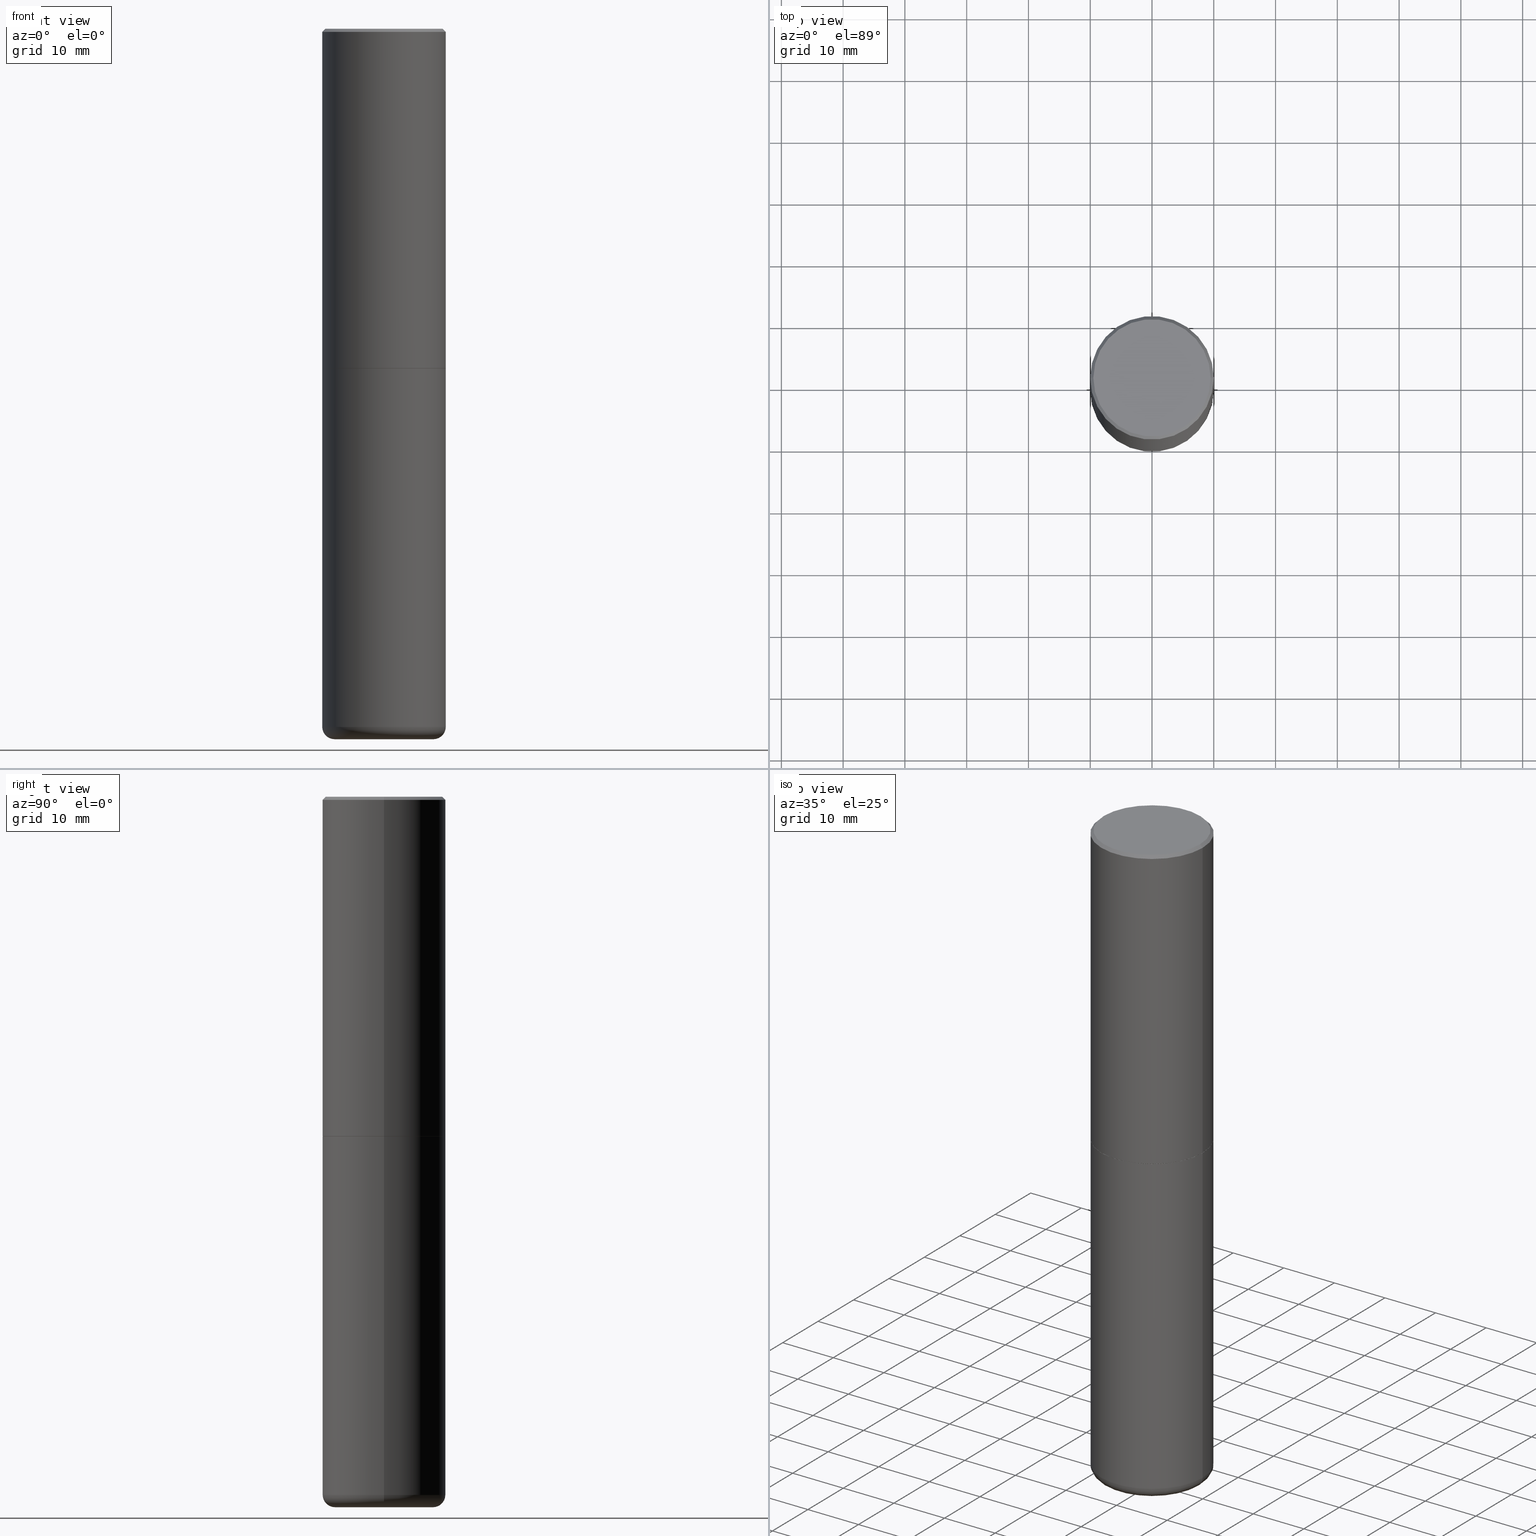
[diagram: canonical four-view strip — front | top / right | iso, engineering-drawing reading convention]
A machine part, canonical four-view strip (front | top / right | iso — engineering-drawing reading convention). The complete STEP part file that produces these views, byte-faithful:
ISO-10303-21;
HEADER;
FILE_DESCRIPTION (( 'STEP AP203' ),
    '1' );
FILE_NAME ('74533.STEP',
    '2024-03-06T15:25:09',
    ( '' ),
    ( '' ),
    'SwSTEP 2.0',
    'SolidWorks 2023',
    '' );
FILE_SCHEMA (( 'CONFIG_CONTROL_DESIGN' ));
ENDSEC;

DATA;
#1 = CC_DESIGN_PERSON_AND_ORGANIZATION_ASSIGNMENT ( #115, #75, ( #155 ) ) ;
#2 = ORIENTED_EDGE ( 'NONE', *, *, #122, .F. ) ;
#3 = VECTOR ( 'NONE', #293, 39.37007874015748143 ) ;
#4 = LOCAL_TIME ( 10, 25, 9.000000000000000000, #246 ) ;
#5 = APPROVAL ( #372, 'UNSPECIFIED' ) ;
#6 = ORIENTED_EDGE ( 'NONE', *, *, #55, .T. ) ;
#7 = CARTESIAN_POINT ( 'NONE',  ( 0.000000000000000000, 0.000000000000000000, 0.000000000000000000 ) ) ;
#8 = ORIENTED_EDGE ( 'NONE', *, *, #74, .F. ) ;
#9 = VECTOR ( 'NONE', #393, 39.37007874015748143 ) ;
#10 = DATE_AND_TIME ( #242, #119 ) ;
#11 = ORGANIZATION ( 'UNSPECIFIED', 'UNSPECIFIED', '' ) ;
#12 = CARTESIAN_POINT ( 'NONE',  ( -0.3737000000000003097, 2.644447966039789847E-15, -2.219626494852397645E-16 ) ) ;
#13 = ORIENTED_EDGE ( 'NONE', *, *, #269, .F. ) ;
#14 = ADVANCED_FACE ( 'NONE', ( #411 ), #213, .T. ) ;
#15 = APPROVAL_STATUS ( 'not_yet_approved' ) ;
#16 = DIRECTION ( 'NONE',  ( -2.445468806185136597E-29, 3.491481338843145583E-15, 1.000000000000000000 ) ) ;
#17 = EDGE_LOOP ( 'NONE', ( #114, #398, #216, #108 ) ) ;
#18 = CARTESIAN_POINT ( 'NONE',  ( 5.295418152913293224E-29, -7.560453691130945845E-15, -2.165399999999999547 ) ) ;
#19 = ORIENTED_EDGE ( 'NONE', *, *, #100, .T. ) ;
#20 = CIRCLE ( 'NONE', #93, 0.3937000000000000499 ) ;
#21 = CIRCLE ( 'NONE', #304, 0.3737000000000003097 ) ;
#22 = CARTESIAN_POINT ( 'NONE',  ( 0.000000000000000000, 0.000000000000000000, 0.000000000000000000 ) ) ;
#23 = EDGE_LOOP ( 'NONE', ( #371, #283, #42, #8 ) ) ;
#24 = DIRECTION ( 'NONE',  ( 1.000000000000000000, -6.982962677686261977E-15, 0.000000000000000000 ) ) ;
#25 = MANIFOLD_SOLID_BREP ( 'Body-Move/Copy2[2]', #202 ) ;
#26 = DIRECTION ( 'NONE',  ( 1.000000000000000000, -6.982962677686273810E-15, 0.000000000000000000 ) ) ;
#27 = EDGE_CURVE ( 'NONE', #280, #110, #171, .T. ) ;
#28 = DIRECTION ( 'NONE',  ( 1.000000000000000000, -6.982962677686265922E-15, 0.000000000000000000 ) ) ;
#29 = FACE_OUTER_BOUND ( 'NONE', #237, .T. ) ;
#30 = CARTESIAN_POINT ( 'NONE',  ( -0.3937000000000000499, 2.679362779428219918E-15, -0.02000000000000008715 ) ) ;
#31 = AXIS2_PLACEMENT_3D ( 'NONE', #382, #277, #346 ) ;
#32 = APPROVAL_PERSON_ORGANIZATION ( #409, #79, #184 ) ;
#33 = ORIENTED_EDGE ( 'NONE', *, *, #160, .F. ) ;
#34 = CARTESIAN_POINT ( 'NONE',  ( 0.3937000000000000499, -1.030964609733602906E-14, -2.165399999999999547 ) ) ;
#35 = ORIENTED_EDGE ( 'NONE', *, *, #362, .T. ) ;
#36 = CARTESIAN_POINT ( 'NONE',  ( 4.890937612370294178E-31, -6.982962677686321191E-17, -0.02000000000000008715 ) ) ;
#37 = AXIS2_PLACEMENT_3D ( 'NONE', #349, #89, #99 ) ;
#38 = ORIENTED_EDGE ( 'NONE', *, *, #97, .F. ) ;
#39 = EDGE_CURVE ( 'NONE', #287, #69, #229, .T. ) ;
#40 = ORIENTED_EDGE ( 'NONE', *, *, #381, .T. ) ;
#41 = DATE_AND_TIME ( #284, #394 ) ;
#42 = ORIENTED_EDGE ( 'NONE', *, *, #262, .F. ) ;
#43 = AXIS2_PLACEMENT_3D ( 'NONE', #191, #263, #59 ) ;
#44 = CONICAL_SURFACE ( 'NONE', #325, 0.3926999999999999935, 0.7853981633975507526 ) ;
#45 = SHAPE_DEFINITION_REPRESENTATION ( #195, #205 ) ;
#46 = DIRECTION ( 'NONE',  ( -2.445468806185136597E-29, 3.491481338843145583E-15, 1.000000000000000000 ) ) ;
#47 = CARTESIAN_POINT ( 'NONE',  ( 0.3150000000000000577, -1.773288457185044394E-14, -4.448900000000000077 ) ) ;
#48 = PERSON_AND_ORGANIZATION ( #286, #11 ) ;
#49 = CARTESIAN_POINT ( 'NONE',  ( 1.087964617183705369E-28, -1.553325132837927055E-14, -4.448900000000000077 ) ) ;
#50 = CARTESIAN_POINT ( 'NONE',  ( 1.087964617183705369E-28, -1.553325132837927055E-14, -4.448900000000000077 ) ) ;
#51 = DIRECTION ( 'NONE',  ( 1.000000000000000000, -6.982962677686266711E-15, 4.877734241229871763E-29 ) ) ;
#52 = CC_DESIGN_PERSON_AND_ORGANIZATION_ASSIGNMENT ( #303, #309, ( #183 ) ) ;
#53 = EDGE_LOOP ( 'NONE', ( #13, #302, #19, #330 ) ) ;
#54 = APPROVAL_STATUS ( 'not_yet_approved' ) ;
#55 = EDGE_CURVE ( 'NONE', #366, #240, #373, .T. ) ;
#56 = CONICAL_SURFACE ( 'NONE', #103, 0.3926999999999999935, 0.7853981633975507526 ) ;
#57 = CARTESIAN_POINT ( 'NONE',  ( 5.295418152913293224E-29, -7.560453691130945845E-15, -2.165399999999999547 ) ) ;
#58 = DIRECTION ( 'NONE',  ( -2.445468806185136597E-29, 3.491481338843145583E-15, 1.000000000000000000 ) ) ;
#59 = DIRECTION ( 'NONE',  ( 1.000000000000000000, -6.982962677686268288E-15, 4.883557194083113462E-29 ) ) ;
#60 = DIRECTION ( 'NONE',  ( -2.445468806185136597E-29, 3.491481338843145583E-15, 1.000000000000000000 ) ) ;
#61 = ADVANCED_FACE ( 'NONE', ( #275 ), #111, .T. ) ;
#62 = CARTESIAN_POINT ( 'NONE',  ( 5.295418152913293224E-29, -7.560453691130945845E-15, -2.165399999999999547 ) ) ;
#63 = TOROIDAL_SURFACE ( 'NONE', #43, 0.3150000000000000577, 0.07870000000000024198 ) ;
#64 = AXIS2_PLACEMENT_3D ( 'NONE', #152, #177, #400 ) ;
#65 = DIRECTION ( 'NONE',  ( -2.445468806185136597E-29, 3.491481338843145583E-15, 1.000000000000000000 ) ) ;
#66 = ADVANCED_FACE ( 'NONE', ( #319 ), #91, .T. ) ;
#67 = AXIS2_PLACEMENT_3D ( 'NONE', #18, #113, #407 ) ;
#68 = DIRECTION ( 'NONE',  ( 0.7071067811866199593, -2.468850131083015945E-15, 0.7071067811864750752 ) ) ;
#69 = VERTEX_POINT ( 'NONE', #323 ) ;
#70 = EDGE_CURVE ( 'NONE', #341, #270, #355, .T. ) ;
#71 = ORIENTED_EDGE ( 'NONE', *, *, #168, .F. ) ;
#72 = VECTOR ( 'NONE', #289, 39.37007874015748143 ) ;
#73 = ORIENTED_EDGE ( 'NONE', *, *, #331, .T. ) ;
#74 = EDGE_CURVE ( 'NONE', #110, #240, #414, .T. ) ;
#75 = PERSON_AND_ORGANIZATION_ROLE ( 'design_owner' ) ;
#76 = ORIENTED_EDGE ( 'NONE', *, *, #39, .F. ) ;
#77 = CALENDAR_DATE ( 2024, 6, 3 ) ;
#78 = CARTESIAN_POINT ( 'NONE',  ( 4.890937612370294178E-31, -6.982962677686321191E-17, -0.02000000000000008715 ) ) ;
#79 = APPROVAL ( #54, 'UNSPECIFIED' ) ;
#80 = ORIENTED_EDGE ( 'NONE', *, *, #269, .T. ) ;
#81 = CIRCLE ( 'NONE', #324, 0.3937000000000000499 ) ;
#82 = COORDINATED_UNIVERSAL_TIME_OFFSET ( 5, 0, .BEHIND. ) ;
#83 = DIRECTION ( 'NONE',  ( -1.000000000000000000, 6.982962677686265922E-15, -4.876176775795935793E-29 ) ) ;
#84 = VERTEX_POINT ( 'NONE', #30 ) ;
#85 = DIRECTION ( 'NONE',  ( -1.000000000000000000, 6.982962677686265922E-15, 0.000000000000000000 ) ) ;
#86 = UNCERTAINTY_MEASURE_WITH_UNIT (LENGTH_MEASURE( 1.000000000000000082E-05 ), #389, 'distance_accuracy_value', 'NONE');
#87 = ORIENTED_EDGE ( 'NONE', *, *, #321, .F. ) ;
#88 = APPROVAL_DATE_TIME ( #176, #221 ) ;
#89 = DIRECTION ( 'NONE',  ( -2.445468806185136597E-29, 3.491481338843145583E-15, 1.000000000000000000 ) ) ;
#90 = FACE_OUTER_BOUND ( 'NONE', #235, .T. ) ;
#91 = CYLINDRICAL_SURFACE ( 'NONE', #37, 0.3937000000000001054 ) ;
#92 = CARTESIAN_POINT ( 'NONE',  ( 0.3937000000000001054, -2.749192406205084005E-15, 1.919750796630860452E-29 ) ) ;
#93 = AXIS2_PLACEMENT_3D ( 'NONE', #225, #227, #28 ) ;
#94 = LOCAL_TIME ( 10, 25, 9.000000000000000000, #369 ) ;
#95 = PLANE ( 'NONE',  #64 ) ;
#96 = CARTESIAN_POINT ( 'NONE',  ( 4.890937612370294178E-31, -6.982962677686321191E-17, -0.02000000000000008715 ) ) ;
#97 = EDGE_CURVE ( 'NONE', #341, #280, #149, .T. ) ;
#98 = PLANE ( 'NONE',  #239 ) ;
#99 = DIRECTION ( 'NONE',  ( 1.000000000000000000, -6.982962677686266711E-15, 4.876176775795935793E-29 ) ) ;
#100 = EDGE_CURVE ( 'NONE', #368, #84, #20, .T. ) ;
#101 = DIRECTION ( 'NONE',  ( -2.445468806185136597E-29, 3.491481338843145583E-15, 1.000000000000000000 ) ) ;
#102 = DIRECTION ( 'NONE',  ( -2.445468806185136597E-29, 3.491481338843145583E-15, 1.000000000000000000 ) ) ;
#103 = AXIS2_PLACEMENT_3D ( 'NONE', #193, #327, #162 ) ;
#104 = PLANE ( 'NONE',  #109 ) ;
#105 = EDGE_LOOP ( 'NONE', ( #172, #332, #200, #344 ) ) ;
#106 = EDGE_CURVE ( 'NONE', #241, #368, #231, .T. ) ;
#107 = EDGE_LOOP ( 'NONE', ( #333, #6 ) ) ;
#108 = ORIENTED_EDGE ( 'NONE', *, *, #27, .F. ) ;
#109 = AXIS2_PLACEMENT_3D ( 'NONE', #397, #367, #335 ) ;
#110 = VERTEX_POINT ( 'NONE', #265 ) ;
#111 = CYLINDRICAL_SURFACE ( 'NONE', #267, 0.3937000000000001054 ) ;
#112 = DATE_TIME_ROLE ( 'creation_date' ) ;
#113 = DIRECTION ( 'NONE',  ( -2.445468806185136597E-29, 3.491481338843145583E-15, 1.000000000000000000 ) ) ;
#114 = ORIENTED_EDGE ( 'NONE', *, *, #160, .T. ) ;
#115 = PERSON_AND_ORGANIZATION ( #286, #11 ) ;
#116 = CYLINDRICAL_SURFACE ( 'NONE', #360, 0.3937000000000001609 ) ;
#117 = EDGE_LOOP ( 'NONE', ( #33, #38 ) ) ;
#118 = AXIS2_PLACEMENT_3D ( 'NONE', #207, #218, #153 ) ;
#119 = LOCAL_TIME ( 10, 25, 9.000000000000000000, #82 ) ;
#120 = APPROVAL_DATE_TIME ( #41, #5 ) ;
#121 = DIRECTION ( 'NONE',  ( 2.445468806185136597E-29, -3.491481338843145583E-15, -1.000000000000000000 ) ) ;
#122 = EDGE_CURVE ( 'NONE', #270, #110, #314, .T. ) ;
#123 = DIRECTION ( 'NONE',  ( 1.000000000000000000, -6.982962677686273810E-15, 0.000000000000000000 ) ) ;
#124 = DIRECTION ( 'NONE',  ( 2.438088387897960049E-29, -3.491481338843145188E-15, -1.000000000000000000 ) ) ;
#125 = CARTESIAN_POINT ( 'NONE',  ( 5.295418152913293224E-29, -7.560453691130945845E-15, -2.165399999999999547 ) ) ;
#126 = PERSON_AND_ORGANIZATION ( #286, #11 ) ;
#127 = CYLINDRICAL_SURFACE ( 'NONE', #31, 0.3937000000000001609 ) ;
#128 = CARTESIAN_POINT ( 'NONE',  ( 1.107210456688382522E-28, -1.580803090974622705E-14, -4.527600000000000513 ) ) ;
#129 = VECTOR ( 'NONE', #255, 39.37007874015748143 ) ;
#130 = LENGTH_MEASURE_WITH_UNIT ( LENGTH_MEASURE( 0.02539999999999999897 ), #359 );
#131 = CC_DESIGN_PERSON_AND_ORGANIZATION_ASSIGNMENT ( #142, #317, ( #224 ) ) ;
#132 = CARTESIAN_POINT ( 'NONE',  ( 0.3937000000000000499, -2.770807688499515734E-15, -0.02000000000000008715 ) ) ;
#133 = ADVANCED_FACE ( 'NONE', ( #260 ), #63, .T. ) ;
#134 = CARTESIAN_POINT ( 'NONE',  ( -0.3150000000000000577, -1.329504171073495377E-14, -4.448900000000000077 ) ) ;
#135 = EDGE_CURVE ( 'NONE', #270, #366, #386, .T. ) ;
#136 = AXIS2_PLACEMENT_3D ( 'NONE', #49, #46, #24 ) ;
#137 = DIRECTION ( 'NONE',  ( -1.000000000000000000, 6.982962677686265922E-15, 0.000000000000000000 ) ) ;
#138 = DIRECTION ( 'NONE',  ( 0.000000000000000000, 0.000000000000000000, 1.000000000000000000 ) ) ;
#139 = CARTESIAN_POINT ( 'NONE',  ( 0.3737000000000003097, -2.667287895133369937E-15, -2.219626494852029345E-16 ) ) ;
#140 = AXIS2_PLACEMENT_3D ( 'NONE', #125, #256, #383 ) ;
#141 = ORIENTED_EDGE ( 'NONE', *, *, #175, .T. ) ;
#142 = PERSON_AND_ORGANIZATION ( #286, #11 ) ;
#143 = CARTESIAN_POINT ( 'NONE',  ( -0.3150000000000000577, -1.315283293489683104E-14, -4.527600000000000513 ) ) ;
#144 = EDGE_LOOP ( 'NONE', ( #245, #408, #166, #214 ) ) ;
#145 = COORDINATED_UNIVERSAL_TIME_OFFSET ( 5, 0, .BEHIND. ) ;
#146 = FACE_OUTER_BOUND ( 'NONE', #107, .T. ) ;
#147 = ORIENTED_EDGE ( 'NONE', *, *, #321, .T. ) ;
#148 = CARTESIAN_POINT ( 'NONE',  ( -0.3937000000000002164, -1.273584457769175656E-14, -4.448900000000000077 ) ) ;
#149 = CIRCLE ( 'NONE', #391, 0.3150000000000000577 ) ;
#150 = VECTOR ( 'NONE', #211, 39.37007874015748143 ) ;
#151 = PERSON_AND_ORGANIZATION_ROLE ( 'creator' ) ;
#152 = CARTESIAN_POINT ( 'NONE',  ( 2.609533152651359776E-15, 0.3737000000000003097, -1.415747901068295320E-15 ) ) ;
#153 = DIRECTION ( 'NONE',  ( 1.000000000000000000, -6.982962677686268288E-15, 0.000000000000000000 ) ) ;
#154 = LINE ( 'NONE', #318, #150 ) ;
#155 = PRODUCT ( '74533', '74533', '', ( #405 ) ) ;
#156 = CARTESIAN_POINT ( 'NONE',  ( 5.292972684107107621E-29, -7.556962209792102838E-15, -2.164399999999999658 ) ) ;
#157 =( NAMED_UNIT ( * ) PLANE_ANGLE_UNIT ( ) SI_UNIT ( $, .RADIAN. ) );
#158 = CC_DESIGN_DATE_AND_TIME_ASSIGNMENT ( #219, #112, ( #271 ) ) ;
#159 = DIRECTION ( 'NONE',  ( -2.445468806185136597E-29, 3.491481338843145583E-15, 1.000000000000000000 ) ) ;
#160 = EDGE_CURVE ( 'NONE', #280, #341, #233, .T. ) ;
#161 = MANIFOLD_SOLID_BREP ( 'Body-Move/Copy2[1]', #406 ) ;
#162 = DIRECTION ( 'NONE',  ( 1.000000000000000000, -6.982962677686268288E-15, 0.000000000000000000 ) ) ;
#163 = AXIS2_PLACEMENT_3D ( 'NONE', #199, #60, #288 ) ;
#164 = AXIS2_PLACEMENT_3D ( 'NONE', #217, #124, #83 ) ;
#165 = EDGE_CURVE ( 'NONE', #380, #181, #328, .T. ) ;
#166 = ORIENTED_EDGE ( 'NONE', *, *, #257, .T. ) ;
#167 = ORIENTED_EDGE ( 'NONE', *, *, #100, .F. ) ;
#168 = EDGE_CURVE ( 'NONE', #84, #368, #81, .T. ) ;
#169 = EDGE_LOOP ( 'NONE', ( #204, #80 ) ) ;
#170 = PERSON_AND_ORGANIZATION ( #286, #11 ) ;
#171 = CIRCLE ( 'NONE', #364, 0.07870000000000024198 ) ;
#172 = ORIENTED_EDGE ( 'NONE', *, *, #135, .F. ) ;
#173 = DIRECTION ( 'NONE',  ( 1.000000000000000000, -6.982962677686266711E-15, 4.876176775795935793E-29 ) ) ;
#174 = ORIENTED_EDGE ( 'NONE', *, *, #70, .F. ) ;
#175 = EDGE_CURVE ( 'NONE', #287, #380, #292, .T. ) ;
#176 = DATE_AND_TIME ( #306, #4 ) ;
#177 = DIRECTION ( 'NONE',  ( 2.438088387897960049E-29, -3.491481338843145188E-15, -1.000000000000000000 ) ) ;
#178 = DIRECTION ( 'NONE',  ( -2.445468806185136597E-29, 3.491481338843145583E-15, 1.000000000000000000 ) ) ;
#179 = CARTESIAN_POINT ( 'NONE',  ( 0.3150000000000000577, -1.800766415321740359E-14, -4.527600000000000513 ) ) ;
#180 = DESIGN_CONTEXT ( 'detailed design', #354, 'design' ) ;
#181 = VERTEX_POINT ( 'NONE', #387 ) ;
#182 = AXIS2_PLACEMENT_3D ( 'NONE', #261, #322, #228 ) ;
#183 = SECURITY_CLASSIFICATION ( '', '', #378 ) ;
#184 = APPROVAL_ROLE ( '' ) ;
#185 = DIRECTION ( 'NONE',  ( -2.445468806185136597E-29, 3.491481338843145583E-15, 1.000000000000000000 ) ) ;
#186 = CARTESIAN_POINT ( 'NONE',  ( 0.000000000000000000, 0.000000000000000000, 0.000000000000000000 ) ) ;
#187 = DIRECTION ( 'NONE',  ( 1.000000000000000000, -6.982962677686273810E-15, 0.000000000000000000 ) ) ;
#188 = CARTESIAN_POINT ( 'NONE',  ( -0.3926999999999999935, -4.764853913452808876E-15, -2.165399999999999547 ) ) ;
#189 = DIMENSIONAL_EXPONENTS ( 1.000000000000000000, 0.000000000000000000, 0.000000000000000000, 0.000000000000000000, 0.000000000000000000, 0.000000000000000000, 0.000000000000000000 ) ;
#190 = AXIS2_PLACEMENT_3D ( 'NONE', #412, #185, #51 ) ;
#191 = CARTESIAN_POINT ( 'NONE',  ( 1.087964617183705369E-28, -1.553325132837927055E-14, -4.448900000000000077 ) ) ;
#192 = DIRECTION ( 'NONE',  ( -0.7071067811866199593, 7.493145998870616062E-15, 0.7071067811864750752 ) ) ;
#193 = CARTESIAN_POINT ( 'NONE',  ( 5.295418152913293224E-29, -7.560453691130945845E-15, -2.165399999999999547 ) ) ;
#194 = ADVANCED_FACE ( 'NONE', ( #353 ), #98, .F. ) ;
#195 = PRODUCT_DEFINITION_SHAPE ( 'NONE', 'NONE',  #271 ) ;
#196 = AXIS2_PLACEMENT_3D ( 'NONE', #36, #301, #137 ) ;
#197 = AXIS2_PLACEMENT_3D ( 'NONE', #7, #138, #272 ) ;
#198 = ORIENTED_EDGE ( 'NONE', *, *, #381, .F. ) ;
#199 = CARTESIAN_POINT ( 'NONE',  ( 5.295418152913293224E-29, -7.560453691130945845E-15, -2.165399999999999547 ) ) ;
#200 = ORIENTED_EDGE ( 'NONE', *, *, #74, .T. ) ;
#201 = CC_DESIGN_PERSON_AND_ORGANIZATION_ASSIGNMENT ( #126, #151, ( #224 ) ) ;
#202 = CLOSED_SHELL ( 'NONE', ( #206, #291, #212, #390, #298, #312, #194, #342 ) ) ;
#203 = APPROVAL_PERSON_ORGANIZATION ( #170, #5, #345 ) ;
#204 = ORIENTED_EDGE ( 'NONE', *, *, #376, .T. ) ;
#205 = ADVANCED_BREP_SHAPE_REPRESENTATION ( '74533', ( #161, #25, #197 ), #299 ) ;
#206 = ADVANCED_FACE ( 'NONE', ( #29 ), #56, .T. ) ;
#207 = CARTESIAN_POINT ( 'NONE',  ( 5.295418152913293224E-29, -7.560453691130945845E-15, -2.165399999999999547 ) ) ;
#208 = PERSON_AND_ORGANIZATION_ROLE ( 'creator' ) ;
#209 = ORIENTED_EDGE ( 'NONE', *, *, #362, .F. ) ;
#210 = APPROVAL_DATE_TIME ( #276, #79 ) ;
#211 = DIRECTION ( 'NONE',  ( -2.445468806185136877E-29, 3.491481338843145188E-15, 1.000000000000000000 ) ) ;
#212 = ADVANCED_FACE ( 'NONE', ( #295 ), #294, .T. ) ;
#213 = TOROIDAL_SURFACE ( 'NONE', #290, 0.3150000000000000577, 0.07870000000000024198 ) ;
#214 = ORIENTED_EDGE ( 'NONE', *, *, #165, .F. ) ;
#215 = DATE_TIME_ROLE ( 'classification_date' ) ;
#216 = ORIENTED_EDGE ( 'NONE', *, *, #264, .F. ) ;
#217 = CARTESIAN_POINT ( 'NONE',  ( 5.295418152913293224E-29, -7.560453691130945845E-15, -2.165399999999999547 ) ) ;
#218 = DIRECTION ( 'NONE',  ( -2.445468806185136597E-29, 3.491481338843145583E-15, 1.000000000000000000 ) ) ;
#219 = DATE_AND_TIME ( #77, #94 ) ;
#220 = FACE_OUTER_BOUND ( 'NONE', #305, .T. ) ;
#221 = APPROVAL ( #15, 'UNSPECIFIED' ) ;
#222 = DIRECTION ( 'NONE',  ( 1.000000000000000000, -6.982962677686266711E-15, 4.876176775795935793E-29 ) ) ;
#223 = VECTOR ( 'NONE', #279, 39.37007874015748143 ) ;
#224 = PRODUCT_DEFINITION_FORMATION_WITH_SPECIFIED_SOURCE ( 'ANY', '', #155, .NOT_KNOWN. ) ;
#225 = CARTESIAN_POINT ( 'NONE',  ( 4.890937612370294178E-31, -6.982962677686321191E-17, -0.02000000000000008715 ) ) ;
#226 = CARTESIAN_POINT ( 'NONE',  ( -0.3937000000000000499, -8.749445759067592624E-15, -2.165399999999999547 ) ) ;
#227 = DIRECTION ( 'NONE',  ( -2.445468806185136597E-29, 3.491481338843145583E-15, 1.000000000000000000 ) ) ;
#228 = DIRECTION ( 'NONE',  ( 1.000000000000000000, -6.982962677686261977E-15, 0.000000000000000000 ) ) ;
#229 = CIRCLE ( 'NONE', #118, 0.3926999999999999935 ) ;
#230 = CARTESIAN_POINT ( 'NONE',  ( -0.3926999999999999935, -4.770152367801032067E-15, -2.165399999999999547 ) ) ;
#231 = LINE ( 'NONE', #132, #72 ) ;
#232 = ORIENTED_EDGE ( 'NONE', *, *, #168, .T. ) ;
#233 = CIRCLE ( 'NONE', #248, 0.3150000000000000577 ) ;
#234 = LINE ( 'NONE', #363, #338 ) ;
#235 = EDGE_LOOP ( 'NONE', ( #401, #300, #147, #71 ) ) ;
#236 = APPLICATION_CONTEXT ( 'configuration controlled 3d designs of mechanical parts and assemblies' ) ;
#237 = EDGE_LOOP ( 'NONE', ( #35, #141, #198, #340 ) ) ;
#238 = CC_DESIGN_PERSON_AND_ORGANIZATION_ASSIGNMENT ( #399, #208, ( #271 ) ) ;
#239 = AXIS2_PLACEMENT_3D ( 'NONE', #62, #326, #357 ) ;
#240 = VERTEX_POINT ( 'NONE', #34 ) ;
#241 = VERTEX_POINT ( 'NONE', #139 ) ;
#242 = CALENDAR_DATE ( 2024, 6, 3 ) ;
#243 = ADVANCED_FACE ( 'NONE', ( #266 ), #104, .T. ) ;
#244 = DIRECTION ( 'NONE',  ( -2.445468806185136597E-29, 3.491481338843145583E-15, 1.000000000000000000 ) ) ;
#245 = ORIENTED_EDGE ( 'NONE', *, *, #175, .F. ) ;
#246 = COORDINATED_UNIVERSAL_TIME_OFFSET ( 5, 0, .BEHIND. ) ;
#247 = PLANE ( 'NONE',  #164 ) ;
#248 = AXIS2_PLACEMENT_3D ( 'NONE', #350, #65, #187 ) ;
#249 = CC_DESIGN_APPROVAL ( #5, ( #224 ) ) ;
#250 = EDGE_LOOP ( 'NONE', ( #209, #76 ) ) ;
#251 = CALENDAR_DATE ( 2024, 6, 3 ) ;
#252 = CARTESIAN_POINT ( 'NONE',  ( 0.3937000000000000499, -2.770807688499515734E-15, -0.02000000000000008715 ) ) ;
#253 = DIRECTION ( 'NONE',  ( 1.000000000000000000, -6.982962677686268288E-15, 4.883557194083113462E-29 ) ) ;
#254 = COORDINATED_UNIVERSAL_TIME_OFFSET ( 5, 0, .BEHIND. ) ;
#255 = DIRECTION ( 'NONE',  ( -2.445468806185136877E-29, 3.491481338843145188E-15, 1.000000000000000000 ) ) ;
#256 = DIRECTION ( 'NONE',  ( -2.445468806185136597E-29, 3.491481338843145583E-15, 1.000000000000000000 ) ) ;
#257 = EDGE_CURVE ( 'NONE', #69, #181, #234, .T. ) ;
#258 = DIRECTION ( 'NONE',  ( -2.445468806185136597E-29, 3.491481338843145583E-15, 1.000000000000000000 ) ) ;
#259 = CC_DESIGN_APPROVAL ( #79, ( #183 ) ) ;
#260 = FACE_OUTER_BOUND ( 'NONE', #17, .T. ) ;
#261 = CARTESIAN_POINT ( 'NONE',  ( 1.087964617183705369E-28, -1.553325132837927055E-14, -4.448900000000000077 ) ) ;
#262 = EDGE_CURVE ( 'NONE', #240, #366, #347, .T. ) ;
#263 = DIRECTION ( 'NONE',  ( -2.445468806185136597E-29, 3.491481338843145583E-15, 1.000000000000000000 ) ) ;
#264 = EDGE_CURVE ( 'NONE', #110, #270, #396, .T. ) ;
#265 = CARTESIAN_POINT ( 'NONE',  ( 0.3937000000000002164, -1.828244373458435062E-14, -4.448900000000000077 ) ) ;
#266 = FACE_OUTER_BOUND ( 'NONE', #117, .T. ) ;
#267 = AXIS2_PLACEMENT_3D ( 'NONE', #186, #58, #222 ) ;
#268 = CIRCLE ( 'NONE', #392, 0.3937000000000002720 ) ;
#269 = EDGE_CURVE ( 'NONE', #241, #329, #385, .T. ) ;
#270 = VERTEX_POINT ( 'NONE', #148 ) ;
#271 = PRODUCT_DEFINITION ( 'UNKNOWN', '', #224, #180 ) ;
#272 = DIRECTION ( 'NONE',  ( 1.000000000000000000, 0.000000000000000000, 0.000000000000000000 ) ) ;
#273 = VECTOR ( 'NONE', #192, 39.37007874015748143 ) ;
#274 = CC_DESIGN_APPROVAL ( #221, ( #271 ) ) ;
#275 = FACE_OUTER_BOUND ( 'NONE', #23, .T. ) ;
#276 = DATE_AND_TIME ( #251, #374 ) ;
#277 = DIRECTION ( 'NONE',  ( -2.445468806185136597E-29, 3.491481338843145583E-15, 1.000000000000000000 ) ) ;
#278 = ORIENTED_EDGE ( 'NONE', *, *, #106, .F. ) ;
#279 = DIRECTION ( 'NONE',  ( -0.7071067811865450192, 2.468850131082230634E-15, -0.7071067811865500152 ) ) ;
#280 = VERTEX_POINT ( 'NONE', #179 ) ;
#281 = CARTESIAN_POINT ( 'NONE',  ( -0.3937000000000000499, 2.679362779428219918E-15, -0.02000000000000008715 ) ) ;
#282 = AXIS2_PLACEMENT_3D ( 'NONE', #134, #417, #320 ) ;
#283 = ORIENTED_EDGE ( 'NONE', *, *, #135, .T. ) ;
#284 = CALENDAR_DATE ( 2024, 6, 3 ) ;
#285 = CARTESIAN_POINT ( 'NONE',  ( 5.428027354543142984E-45, -7.749784485978325769E-31, -2.219626494852213988E-16 ) ) ;
#286 = PERSON ( 'UNSPECIFIED', 'UNSPECIFIED', 'UNSPECIFIED', ('UNSPECIFIED'), ('UNSPECIFIED'), ('UNSPECIFIED') ) ;
#287 = VERTEX_POINT ( 'NONE', #188 ) ;
#288 = DIRECTION ( 'NONE',  ( 1.000000000000000000, -6.982962677686265133E-15, 0.000000000000000000 ) ) ;
#289 = DIRECTION ( 'NONE',  ( 0.7071067811865450192, -7.319954787623246579E-15, -0.7071067811865500152 ) ) ;
#290 = AXIS2_PLACEMENT_3D ( 'NONE', #50, #178, #253 ) ;
#291 = ADVANCED_FACE ( 'NONE', ( #310 ), #127, .T. ) ;
#292 = LINE ( 'NONE', #230, #273 ) ;
#293 = DIRECTION ( 'NONE',  ( -2.445468806185136877E-29, 3.491481338843145188E-15, 1.000000000000000000 ) ) ;
#294 = CONICAL_SURFACE ( 'NONE', #196, 0.3937000000000000499, 0.7853981633974447263 ) ;
#295 = FACE_OUTER_BOUND ( 'NONE', #53, .T. ) ;
#296 = CONICAL_SURFACE ( 'NONE', #365, 0.3937000000000000499, 0.7853981633974447263 ) ;
#297 = EDGE_CURVE ( 'NONE', #329, #84, #313, .T. ) ;
#298 = ADVANCED_FACE ( 'NONE', ( #90 ), #116, .T. ) ;
#299 =( GEOMETRIC_REPRESENTATION_CONTEXT ( 3 ) GLOBAL_UNCERTAINTY_ASSIGNED_CONTEXT ( ( #86 ) ) GLOBAL_UNIT_ASSIGNED_CONTEXT ( ( #389, #157, #358 ) ) REPRESENTATION_CONTEXT ( 'NONE', 'WORKASPACE' ) );
#300 = ORIENTED_EDGE ( 'NONE', *, *, #165, .T. ) ;
#301 = DIRECTION ( 'NONE',  ( 2.445468806185136597E-29, -3.491481338843145583E-15, -1.000000000000000000 ) ) ;
#302 = ORIENTED_EDGE ( 'NONE', *, *, #106, .T. ) ;
#303 = PERSON_AND_ORGANIZATION ( #286, #11 ) ;
#304 = AXIS2_PLACEMENT_3D ( 'NONE', #285, #351, #379 ) ;
#305 = EDGE_LOOP ( 'NONE', ( #278, #395, #336, #232 ) ) ;
#306 = CALENDAR_DATE ( 2024, 6, 3 ) ;
#307 = CARTESIAN_POINT ( 'NONE',  ( 5.292972684107107621E-29, -7.556962209792102838E-15, -2.164399999999999658 ) ) ;
#308 = ORIENTED_EDGE ( 'NONE', *, *, #27, .T. ) ;
#309 = PERSON_AND_ORGANIZATION_ROLE ( 'classification_officer' ) ;
#310 = FACE_OUTER_BOUND ( 'NONE', #404, .T. ) ;
#311 = DIRECTION ( 'NONE',  ( -6.982962677686266711E-15, -1.000000000000000000, 3.491481338843145583E-15 ) ) ;
#312 = ADVANCED_FACE ( 'NONE', ( #375 ), #44, .T. ) ;
#313 = LINE ( 'NONE', #281, #223 ) ;
#314 = CIRCLE ( 'NONE', #182, 0.3937000000000001054 ) ;
#315 = APPROVAL_PERSON_ORGANIZATION ( #48, #221, #337 ) ;
#316 = ORIENTED_EDGE ( 'NONE', *, *, #97, .T. ) ;
#317 = PERSON_AND_ORGANIZATION_ROLE ( 'design_supplier' ) ;
#318 = CARTESIAN_POINT ( 'NONE',  ( 0.3937000000000001609, -2.749192406205084400E-15, 1.919750796630860732E-29 ) ) ;
#319 = FACE_OUTER_BOUND ( 'NONE', #105, .T. ) ;
#320 = DIRECTION ( 'NONE',  ( -1.000000000000000000, 7.105427357600995548E-15, 0.000000000000000000 ) ) ;
#321 = EDGE_CURVE ( 'NONE', #181, #368, #154, .T. ) ;
#322 = DIRECTION ( 'NONE',  ( -2.445468806185136597E-29, 3.491481338843145583E-15, 1.000000000000000000 ) ) ;
#323 = CARTESIAN_POINT ( 'NONE',  ( 0.3926999999999999935, -1.030266313465834305E-14, -2.165399999999999547 ) ) ;
#324 = AXIS2_PLACEMENT_3D ( 'NONE', #96, #101, #415 ) ;
#325 = AXIS2_PLACEMENT_3D ( 'NONE', #57, #16, #343 ) ;
#326 = DIRECTION ( 'NONE',  ( -2.438088387897960049E-29, 3.491481338843145188E-15, 1.000000000000000000 ) ) ;
#327 = DIRECTION ( 'NONE',  ( -2.445468806185136597E-29, 3.491481338843145583E-15, 1.000000000000000000 ) ) ;
#328 = CIRCLE ( 'NONE', #418, 0.3937000000000002720 ) ;
#329 = VERTEX_POINT ( 'NONE', #12 ) ;
#330 = ORIENTED_EDGE ( 'NONE', *, *, #297, .F. ) ;
#331 = EDGE_CURVE ( 'NONE', #380, #84, #384, .T. ) ;
#332 = ORIENTED_EDGE ( 'NONE', *, *, #122, .T. ) ;
#333 = ORIENTED_EDGE ( 'NONE', *, *, #262, .T. ) ;
#334 = APPLICATION_PROTOCOL_DEFINITION ( 'international standard', 'config_control_design', 1994, #354 ) ;
#335 = DIRECTION ( 'NONE',  ( -1.000000000000000000, 6.982962677686265922E-15, -4.876176775795935793E-29 ) ) ;
#336 = ORIENTED_EDGE ( 'NONE', *, *, #297, .T. ) ;
#337 = APPROVAL_ROLE ( '' ) ;
#338 = VECTOR ( 'NONE', #68, 39.37007874015748143 ) ;
#339 = CARTESIAN_POINT ( 'NONE',  ( -0.3937000000000001609, 2.797406750687515575E-15, -1.936584745033357296E-29 ) ) ;
#340 = ORIENTED_EDGE ( 'NONE', *, *, #257, .F. ) ;
#341 = VERTEX_POINT ( 'NONE', #143 ) ;
#342 = ADVANCED_FACE ( 'NONE', ( #403 ), #95, .F. ) ;
#343 = DIRECTION ( 'NONE',  ( 1.000000000000000000, -6.982962677686268288E-15, 0.000000000000000000 ) ) ;
#344 = ORIENTED_EDGE ( 'NONE', *, *, #55, .F. ) ;
#345 = APPROVAL_ROLE ( '' ) ;
#346 = DIRECTION ( 'NONE',  ( 1.000000000000000000, -6.982962677686266711E-15, 4.876176775795935793E-29 ) ) ;
#347 = CIRCLE ( 'NONE', #163, 0.3937000000000000499 ) ;
#348 = CIRCLE ( 'NONE', #67, 0.3926999999999999935 ) ;
#349 = CARTESIAN_POINT ( 'NONE',  ( 0.000000000000000000, 0.000000000000000000, 0.000000000000000000 ) ) ;
#350 = CARTESIAN_POINT ( 'NONE',  ( 1.107210456688382522E-28, -1.580803090974622705E-14, -4.527600000000000513 ) ) ;
#351 = DIRECTION ( 'NONE',  ( -2.445468806185136597E-29, 3.491481338843145583E-15, 1.000000000000000000 ) ) ;
#352 = PRODUCT_RELATED_PRODUCT_CATEGORY ( 'detail', '', ( #155 ) ) ;
#353 = FACE_OUTER_BOUND ( 'NONE', #250, .T. ) ;
#354 = APPLICATION_CONTEXT ( 'configuration controlled 3d designs of mechanical parts and assemblies' ) ;
#355 = CIRCLE ( 'NONE', #282, 0.07870000000000024198 ) ;
#356 = CARTESIAN_POINT ( 'NONE',  ( -0.3937000000000001054, 2.797406750687515181E-15, -1.936584745033357016E-29 ) ) ;
#357 = DIRECTION ( 'NONE',  ( 1.000000000000000000, -6.982962677686265922E-15, 4.876176775795935793E-29 ) ) ;
#358 =( NAMED_UNIT ( * ) SI_UNIT ( $, .STERADIAN. ) SOLID_ANGLE_UNIT ( ) );
#359 =( LENGTH_UNIT ( ) NAMED_UNIT ( * ) SI_UNIT ( $, .METRE. ) );
#360 = AXIS2_PLACEMENT_3D ( 'NONE', #22, #258, #173 ) ;
#361 = CC_DESIGN_SECURITY_CLASSIFICATION ( #183, ( #224 ) ) ;
#362 = EDGE_CURVE ( 'NONE', #69, #287, #348, .T. ) ;
#363 = CARTESIAN_POINT ( 'NONE',  ( 0.3926999999999999935, -1.030266313465834305E-14, -2.165399999999999547 ) ) ;
#364 = AXIS2_PLACEMENT_3D ( 'NONE', #47, #311, #123 ) ;
#365 = AXIS2_PLACEMENT_3D ( 'NONE', #78, #121, #85 ) ;
#366 = VERTEX_POINT ( 'NONE', #226 ) ;
#367 = DIRECTION ( 'NONE',  ( 2.438088387897960049E-29, -3.491481338843145188E-15, -1.000000000000000000 ) ) ;
#368 = VERTEX_POINT ( 'NONE', #252 ) ;
#369 = COORDINATED_UNIVERSAL_TIME_OFFSET ( 5, 0, .BEHIND. ) ;
#370 = DIRECTION ( 'NONE',  ( 1.000000000000000000, -6.982962677686269077E-15, 0.000000000000000000 ) ) ;
#371 = ORIENTED_EDGE ( 'NONE', *, *, #264, .T. ) ;
#372 = APPROVAL_STATUS ( 'not_yet_approved' ) ;
#373 = CIRCLE ( 'NONE', #140, 0.3937000000000000499 ) ;
#374 = LOCAL_TIME ( 10, 25, 9.000000000000000000, #254 ) ;
#375 = FACE_OUTER_BOUND ( 'NONE', #144, .T. ) ;
#376 = EDGE_CURVE ( 'NONE', #329, #241, #21, .T. ) ;
#377 = EDGE_LOOP ( 'NONE', ( #174, #316, #308, #2 ) ) ;
#378 = SECURITY_CLASSIFICATION_LEVEL ( 'unclassified' ) ;
#379 = DIRECTION ( 'NONE',  ( 1.000000000000000000, -6.982962677686266711E-15, 4.877734241229871763E-29 ) ) ;
#380 = VERTEX_POINT ( 'NONE', #410 ) ;
#381 = EDGE_CURVE ( 'NONE', #181, #380, #268, .T. ) ;
#382 = CARTESIAN_POINT ( 'NONE',  ( 0.000000000000000000, 0.000000000000000000, 0.000000000000000000 ) ) ;
#383 = DIRECTION ( 'NONE',  ( 1.000000000000000000, -6.982962677686265133E-15, 0.000000000000000000 ) ) ;
#384 = LINE ( 'NONE', #339, #129 ) ;
#385 = CIRCLE ( 'NONE', #190, 0.3737000000000003097 ) ;
#386 = LINE ( 'NONE', #356, #3 ) ;
#387 = CARTESIAN_POINT ( 'NONE',  ( 0.3937000000000002720, -1.030615461599718763E-14, -2.164399999999999658 ) ) ;
#388 = DIRECTION ( 'NONE',  ( 1.000000000000000000, -6.982962677686269077E-15, 0.000000000000000000 ) ) ;
#389 =( CONVERSION_BASED_UNIT ( 'INCH', #130 ) LENGTH_UNIT ( ) NAMED_UNIT ( #189 ) );
#390 = ADVANCED_FACE ( 'NONE', ( #220 ), #296, .T. ) ;
#391 = AXIS2_PLACEMENT_3D ( 'NONE', #128, #102, #26 ) ;
#392 = AXIS2_PLACEMENT_3D ( 'NONE', #307, #244, #370 ) ;
#393 = DIRECTION ( 'NONE',  ( -2.445468806185136877E-29, 3.491481338843145188E-15, 1.000000000000000000 ) ) ;
#394 = LOCAL_TIME ( 10, 25, 9.000000000000000000, #145 ) ;
#395 = ORIENTED_EDGE ( 'NONE', *, *, #376, .F. ) ;
#396 = CIRCLE ( 'NONE', #136, 0.3937000000000001054 ) ;
#397 = CARTESIAN_POINT ( 'NONE',  ( 5.588277579636493975E-29, -2.366118327553309587E-14, -4.527600000000000513 ) ) ;
#398 = ORIENTED_EDGE ( 'NONE', *, *, #70, .T. ) ;
#399 = PERSON_AND_ORGANIZATION ( #286, #11 ) ;
#400 = DIRECTION ( 'NONE',  ( -1.000000000000000000, 6.982962677686265922E-15, -4.876176775795935793E-29 ) ) ;
#401 = ORIENTED_EDGE ( 'NONE', *, *, #331, .F. ) ;
#402 = APPLICATION_PROTOCOL_DEFINITION ( 'international standard', 'config_control_design', 1994, #236 ) ;
#403 = FACE_OUTER_BOUND ( 'NONE', #169, .T. ) ;
#404 = EDGE_LOOP ( 'NONE', ( #40, #73, #167, #87 ) ) ;
#405 = MECHANICAL_CONTEXT ( 'NONE', #236, 'mechanical' ) ;
#406 = CLOSED_SHELL ( 'NONE', ( #61, #133, #416, #66, #14, #243 ) ) ;
#407 = DIRECTION ( 'NONE',  ( 1.000000000000000000, -6.982962677686268288E-15, 0.000000000000000000 ) ) ;
#408 = ORIENTED_EDGE ( 'NONE', *, *, #39, .T. ) ;
#409 = PERSON_AND_ORGANIZATION ( #286, #11 ) ;
#410 = CARTESIAN_POINT ( 'NONE',  ( -0.3937000000000003830, -1.015989167596963746E-15, -2.164399999999999658 ) ) ;
#411 = FACE_OUTER_BOUND ( 'NONE', #377, .T. ) ;
#412 = CARTESIAN_POINT ( 'NONE',  ( 5.428027354543142984E-45, -7.749784485978325769E-31, -2.219626494852213988E-16 ) ) ;
#413 = CC_DESIGN_DATE_AND_TIME_ASSIGNMENT ( #10, #215, ( #183 ) ) ;
#414 = LINE ( 'NONE', #92, #9 ) ;
#415 = DIRECTION ( 'NONE',  ( 1.000000000000000000, -6.982962677686265922E-15, 0.000000000000000000 ) ) ;
#416 = ADVANCED_FACE ( 'NONE', ( #146 ), #247, .F. ) ;
#417 = DIRECTION ( 'NONE',  ( 7.105427357601001859E-15, 1.000000000000000000, -3.491481338843145583E-15 ) ) ;
#418 = AXIS2_PLACEMENT_3D ( 'NONE', #156, #159, #388 ) ;
ENDSEC;
END-ISO-10303-21;
